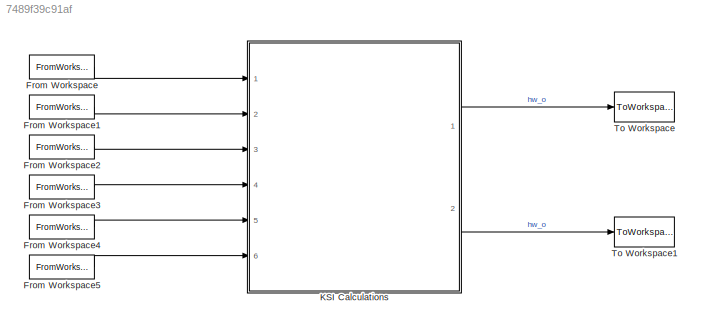
MODEL slx_7489f39c91af
KIND model
CONFIG AbsTol = auto
CONFIG EnableMultiTasking = off
CONFIG FixedStep = auto
CONFIG InitFcn = block_verScript;
CONFIG MaxStep = auto
CONFIG MinStep = auto
CONFIG RelTol = 1e-3
CONFIG SampleTimeConstraint = Unconstrained
CONFIG Solver = VariableStepAuto
CONFIG SolverName = VariableStepAuto
CONFIG StartTime = 0.0
CONFIG StopFcn = ksiOut = out.ksi_verOut.signals.values(:, 1:FFT_size);\nhwOut = out.hw_verOut.signals.values(:, 1:FFT_size);\n\nfigure();\nsubplot(211);\nstem(1:FFT_size, ksiOut(1,:)); xlabel('Samples'); title('ksi Output - Frame 1');\nsubplot(212);\nstem(1:FFT_size, hwOut(1,:)); xlabel('Samples'); title('hw Output - Frame 1');
CONFIG StopTime = (nSamp-1)*Ts
BLOCK [FromWorkspace] From Workspace
  SampleTime = Ts
  VariableName = postSNRSim
  ZeroCross = on
BLOCK [FromWorkspace] From Workspace1
  SampleTime = Ts
  VariableName = noiseVarianceSim
  ZeroCross = on
BLOCK [FromWorkspace] From Workspace2
  SampleTime = Ts
  VariableName = ksiInitSim
  ZeroCross = on
BLOCK [FromWorkspace] From Workspace3
  SampleTime = Ts
  VariableName = Xk_prevSim
  ZeroCross = on
BLOCK [FromWorkspace] From Workspace4
  SampleTime = Ts
  VariableName = aaSim
  ZeroCross = on
BLOCK [FromWorkspace] From Workspace5
  SampleTime = Ts
  VariableName = betaSim
  ZeroCross = on
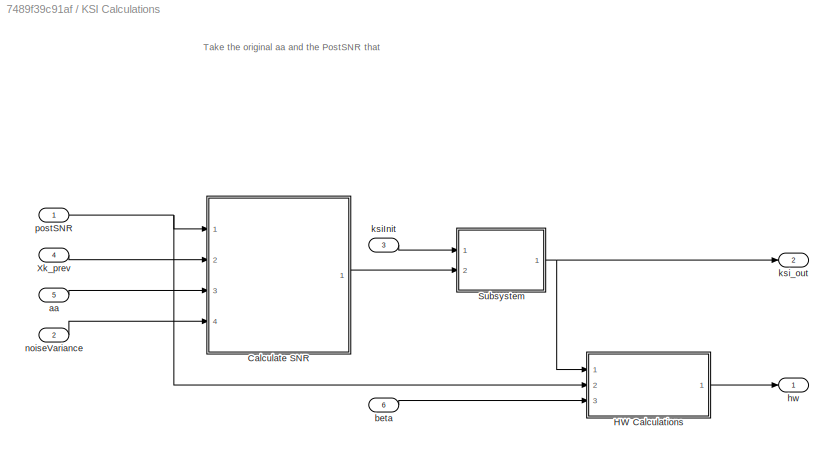
BLOCK [SubSystem] KSI Calculations
  Ports = [6, 2]
  RequestExecContextInheritance = off
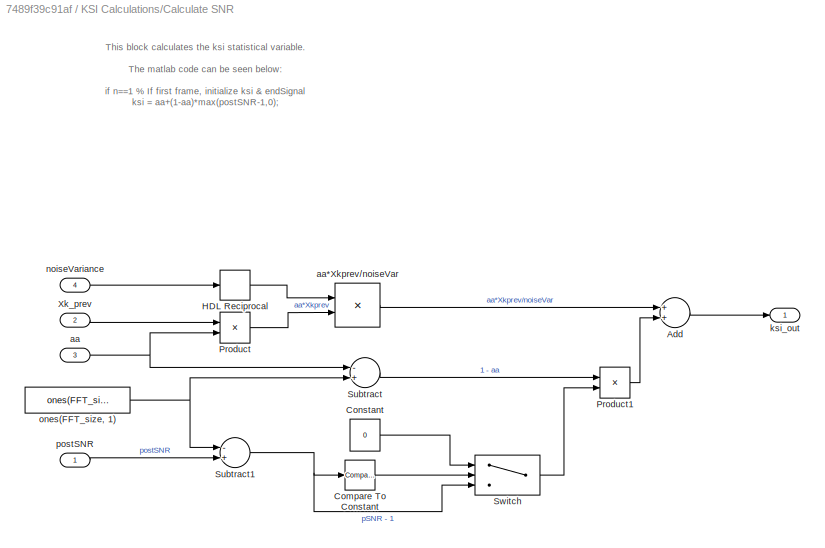
BLOCK [SubSystem] KSI Calculations/Calculate SNR
  Ports = [4, 1]
  RequestExecContextInheritance = off
BLOCK [Sum] KSI Calculations/Calculate SNR/Add
  InputSameDT = off
  OutDataTypeStr = Inherit: Inherit via internal rule
  Ports = [2, 1]
  SaturateOnIntegerOverflow = off
BLOCK [Reference] KSI Calculations/Calculate SNR/Compare To Constant  REF=simulink/Logic and Bit
Operations/Compare
To Constant
  Ports = [1, 1]
  SourceBlock = simulink/Logic and Bit\nOperations/Compare\nTo Constant
  SourceProductBaseCode = SL
  SourceProductName = Simulink
  SourceType = Compare To Constant
BLOCK [Constant] KSI Calculations/Calculate SNR/Constant
  SampleTime = -1
  Value = 0
BLOCK [Reciprocal] KSI Calculations/Calculate SNR/HDL Reciprocal
BLOCK [Product] KSI Calculations/Calculate SNR/Product
  InputSameDT = off
  OutDataTypeStr = Inherit: Inherit via internal rule
  Ports = [2, 1]
  RndMeth = Floor
  SaturateOnIntegerOverflow = off
BLOCK [Product] KSI Calculations/Calculate SNR/Product1
  InputSameDT = off
  OutDataTypeStr = Inherit: Inherit via internal rule
  Ports = [2, 1]
  RndMeth = Floor
  SaturateOnIntegerOverflow = off
BLOCK [Sum] KSI Calculations/Calculate SNR/Subtract
  InputSameDT = off
  Inputs = -+
  OutDataTypeStr = Inherit: Inherit via internal rule
  Ports = [2, 1]
  SaturateOnIntegerOverflow = off
BLOCK [Sum] KSI Calculations/Calculate SNR/Subtract1
  InputSameDT = off
  Inputs = -+
  OutDataTypeStr = Inherit: Inherit via internal rule
  Ports = [2, 1]
  SaturateOnIntegerOverflow = off
BLOCK [Switch] KSI Calculations/Calculate SNR/Switch
  InputSameDT = off
  SaturateOnIntegerOverflow = off
  Threshold = 1
BLOCK [Inport] KSI Calculations/Calculate SNR/Xk_prev
  IconDisplay = Port number
  Port = 2
BLOCK [Inport] KSI Calculations/Calculate SNR/aa
  IconDisplay = Port number
  Port = 3
BLOCK [Product] KSI Calculations/Calculate SNR/aa*Xkprev//noiseVar
  InputSameDT = off
  Inputs = **
  OutDataTypeStr = Inherit: Inherit via internal rule
  Ports = [2, 1]
BLOCK [Outport] KSI Calculations/Calculate SNR/ksi_out
  IconDisplay = Port number
BLOCK [Inport] KSI Calculations/Calculate SNR/noiseVariance
  IconDisplay = Port number
  Port = 4
BLOCK [Constant] KSI Calculations/Calculate SNR/ones(FFT_size, 1)
  SampleTime = -1
  Value = ones(FFT_size, 1)
BLOCK [Inport] KSI Calculations/Calculate SNR/postSNR
  IconDisplay = Port number
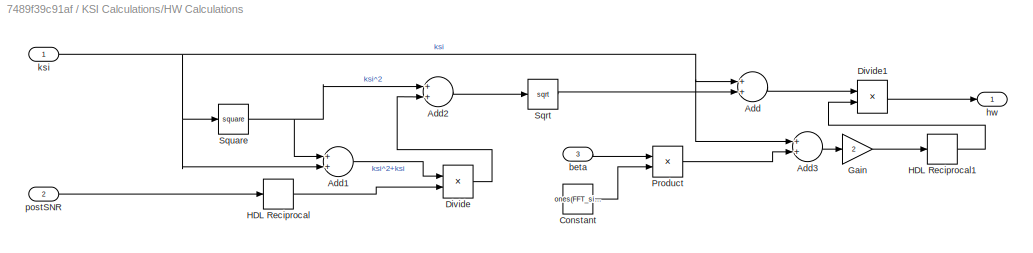
BLOCK [SubSystem] KSI Calculations/HW Calculations
  Ports = [3, 1]
  RequestExecContextInheritance = off
BLOCK [Sum] KSI Calculations/HW Calculations/Add
  InputSameDT = off
  OutDataTypeStr = Inherit: Inherit via internal rule
  Ports = [2, 1]
  SaturateOnIntegerOverflow = off
BLOCK [Sum] KSI Calculations/HW Calculations/Add1
  InputSameDT = off
  OutDataTypeStr = Inherit: Inherit via internal rule
  Ports = [2, 1]
  SaturateOnIntegerOverflow = off
BLOCK [Sum] KSI Calculations/HW Calculations/Add2
  InputSameDT = off
  OutDataTypeStr = Inherit: Inherit via internal rule
  Ports = [2, 1]
  SaturateOnIntegerOverflow = off
BLOCK [Sum] KSI Calculations/HW Calculations/Add3
  InputSameDT = off
  OutDataTypeStr = Inherit: Inherit via internal rule
  Ports = [2, 1]
  SaturateOnIntegerOverflow = off
BLOCK [Constant] KSI Calculations/HW Calculations/Constant
  SampleTime = Ts
  Value = ones(FFT_size, 1)
BLOCK [Product] KSI Calculations/HW Calculations/Divide
  InputSameDT = off
  Inputs = **
  OutDataTypeStr = Inherit: Inherit via internal rule
  Ports = [2, 1]
BLOCK [Product] KSI Calculations/HW Calculations/Divide1
  InputSameDT = off
  Inputs = **
  OutDataTypeStr = Inherit: Inherit via internal rule
  Ports = [2, 1]
BLOCK [Gain] KSI Calculations/HW Calculations/Gain
  Gain = 2
  OutDataTypeStr = Inherit: Inherit via internal rule
  ParamDataTypeStr = Inherit: Inherit via internal rule
  SaturateOnIntegerOverflow = off
BLOCK [Reciprocal] KSI Calculations/HW Calculations/HDL Reciprocal
BLOCK [Reciprocal] KSI Calculations/HW Calculations/HDL Reciprocal1
BLOCK [Product] KSI Calculations/HW Calculations/Product
  InputSameDT = off
  OutDataTypeStr = Inherit: Inherit via internal rule
  Ports = [2, 1]
  RndMeth = Floor
  SaturateOnIntegerOverflow = off
BLOCK [Sqrt] KSI Calculations/HW Calculations/Sqrt
BLOCK [Math] KSI Calculations/HW Calculations/Square
  Operator = square
  Ports = [1, 1]
  RndMeth = Zero
BLOCK [Inport] KSI Calculations/HW Calculations/beta
  IconDisplay = Port number
  Port = 3
BLOCK [Outport] KSI Calculations/HW Calculations/hw
  IconDisplay = Port number
BLOCK [Inport] KSI Calculations/HW Calculations/ksi
  IconDisplay = Port number
BLOCK [Inport] KSI Calculations/HW Calculations/postSNR
  IconDisplay = Port number
  Port = 2
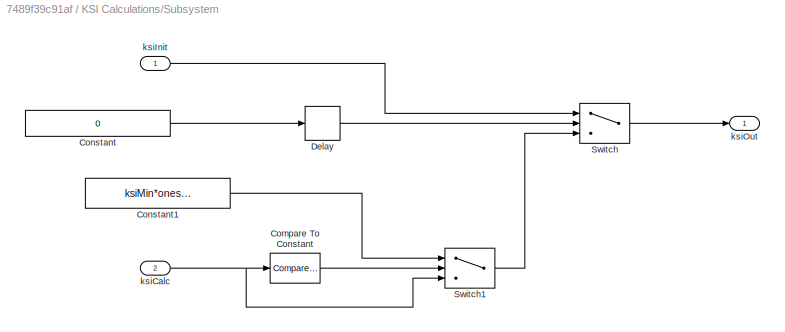
BLOCK [SubSystem] KSI Calculations/Subsystem
  Ports = [2, 1]
  RequestExecContextInheritance = off
BLOCK [Reference] KSI Calculations/Subsystem/Compare To Constant  REF=simulink/Logic and Bit
Operations/Compare
To Constant
  Ports = [1, 1]
  SourceBlock = simulink/Logic and Bit\nOperations/Compare\nTo Constant
  SourceProductBaseCode = SL
  SourceProductName = Simulink
  SourceType = Compare To Constant
BLOCK [Constant] KSI Calculations/Subsystem/Constant
  SampleTime = -1
  Value = 0
BLOCK [Constant] KSI Calculations/Subsystem/Constant1
  SampleTime = -1
  Value = ksiMin*ones(FFT_size, 1)
BLOCK [Delay] KSI Calculations/Subsystem/Delay
  DelayLength = 1
  InitialCondition = 1
  InputPortMap = u0
  Ports = [1, 1]
BLOCK [Switch] KSI Calculations/Subsystem/Switch
  Criteria = u2 > Threshold
  InputSameDT = off
  SaturateOnIntegerOverflow = off
BLOCK [Switch] KSI Calculations/Subsystem/Switch1
  Criteria = u2 > Threshold
  InputSameDT = off
  SaturateOnIntegerOverflow = off
BLOCK [Inport] KSI Calculations/Subsystem/ksiCalc
  IconDisplay = Port number
  Port = 2
BLOCK [Inport] KSI Calculations/Subsystem/ksiInit
  IconDisplay = Port number
BLOCK [Outport] KSI Calculations/Subsystem/ksiOut
  IconDisplay = Port number
BLOCK [Inport] KSI Calculations/Xk_prev
  IconDisplay = Port number
  Port = 4
BLOCK [Inport] KSI Calculations/aa
  IconDisplay = Port number
  Port = 5
BLOCK [Inport] KSI Calculations/beta
  IconDisplay = Port number
  Port = 6
BLOCK [Outport] KSI Calculations/hw
  IconDisplay = Port number
BLOCK [Inport] KSI Calculations/ksiInit
  IconDisplay = Port number
  Port = 3
BLOCK [Outport] KSI Calculations/ksi_out
  IconDisplay = Port number
  Port = 2
BLOCK [Inport] KSI Calculations/noiseVariance
  IconDisplay = Port number
  Port = 2
BLOCK [Inport] KSI Calculations/postSNR
  IconDisplay = Port number
BLOCK [ToWorkspace] To Workspace
  FixptAsFi = on
  MaxDataPoints = inf
  Ports = [1]
  SampleTime = -1
  SaveFormat = Structure With Time
  VariableName = hw_verOut
BLOCK [ToWorkspace] To Workspace1
  FixptAsFi = on
  MaxDataPoints = inf
  Ports = [1]
  SampleTime = -1
  SaveFormat = Structure With Time
  VariableName = ksi_verOut
ANNOTATION KSI Calculations: Take the original aa and the PostSNR that
ANNOTATION KSI Calculations/Calculate SNR: This block calculates the ksi statistical variable. The matlab code can be seen below: if n==1 % If first frame, initialize ksi & endSignal ksi = aa+(1-aa)*max(postSNR-1,0); ensig = frameMag; else ksi = aa*Xk_prev./noiseVariance + (1-aa)*max(postSNR-1,0); % decision-direct estimate of a priori SNR ksi = max(ksi_min,ksi); % limit ksi to -25 dB end
LINE From Workspace1:1 -> KSI Calculations:2
LINE From Workspace2:1 -> KSI Calculations:3
LINE From Workspace3:1 -> KSI Calculations:4
LINE From Workspace4:1 -> KSI Calculations:5
LINE From Workspace5:1 -> KSI Calculations:6
LINE From Workspace:1 -> KSI Calculations:1
LINE KSI Calculations/Calculate SNR/Add:1 -> KSI Calculations/Calculate SNR/ksi_out:1
LINE KSI Calculations/Calculate SNR/Compare To Constant:1 -> KSI Calculations/Calculate SNR/Switch:2
LINE KSI Calculations/Calculate SNR/Constant:1 -> KSI Calculations/Calculate SNR/Switch:1
LINE KSI Calculations/Calculate SNR/HDL Reciprocal:1 -> KSI Calculations/Calculate SNR/aa*Xkprev//noiseVar:1
LINE KSI Calculations/Calculate SNR/Product1:1 -> KSI Calculations/Calculate SNR/Add:2
LINE KSI Calculations/Calculate SNR/Product:1 -> KSI Calculations/Calculate SNR/aa*Xkprev//noiseVar:2
NET KSI Calculations/Calculate SNR/Subtract1:1 -> KSI Calculations/Calculate SNR/Compare To Constant:1, KSI Calculations/Calculate SNR/Switch:3
LINE KSI Calculations/Calculate SNR/Subtract:1 -> KSI Calculations/Calculate SNR/Product1:1
LINE KSI Calculations/Calculate SNR/Switch:1 -> KSI Calculations/Calculate SNR/Product1:2
LINE KSI Calculations/Calculate SNR/Xk_prev:1 -> KSI Calculations/Calculate SNR/Product:1
LINE KSI Calculations/Calculate SNR/aa*Xkprev//noiseVar:1 -> KSI Calculations/Calculate SNR/Add:1
NET KSI Calculations/Calculate SNR/aa:1 -> KSI Calculations/Calculate SNR/Product:2, KSI Calculations/Calculate SNR/Subtract:1
LINE KSI Calculations/Calculate SNR/noiseVariance:1 -> KSI Calculations/Calculate SNR/HDL Reciprocal:1
NET KSI Calculations/Calculate SNR/ones(FFT_size, 1):1 -> KSI Calculations/Calculate SNR/Subtract1:1, KSI Calculations/Calculate SNR/Subtract:2
LINE KSI Calculations/Calculate SNR/postSNR:1 -> KSI Calculations/Calculate SNR/Subtract1:2
LINE KSI Calculations/Calculate SNR:1 -> KSI Calculations/Subsystem:2
LINE KSI Calculations/HW Calculations/Add1:1 -> KSI Calculations/HW Calculations/Divide:1
LINE KSI Calculations/HW Calculations/Add2:1 -> KSI Calculations/HW Calculations/Sqrt:1
LINE KSI Calculations/HW Calculations/Add3:1 -> KSI Calculations/HW Calculations/Gain:1
LINE KSI Calculations/HW Calculations/Add:1 -> KSI Calculations/HW Calculations/Divide1:1
LINE KSI Calculations/HW Calculations/Constant:1 -> KSI Calculations/HW Calculations/Product:2
LINE KSI Calculations/HW Calculations/Divide1:1 -> KSI Calculations/HW Calculations/hw:1
LINE KSI Calculations/HW Calculations/Divide:1 -> KSI Calculations/HW Calculations/Add2:2
LINE KSI Calculations/HW Calculations/Gain:1 -> KSI Calculations/HW Calculations/HDL Reciprocal1:1
LINE KSI Calculations/HW Calculations/HDL Reciprocal1:1 -> KSI Calculations/HW Calculations/Divide1:2
LINE KSI Calculations/HW Calculations/HDL Reciprocal:1 -> KSI Calculations/HW Calculations/Divide:2
LINE KSI Calculations/HW Calculations/Product:1 -> KSI Calculations/HW Calculations/Add3:2
LINE KSI Calculations/HW Calculations/Sqrt:1 -> KSI Calculations/HW Calculations/Add:2
NET KSI Calculations/HW Calculations/Square:1 -> KSI Calculations/HW Calculations/Add1:1, KSI Calculations/HW Calculations/Add2:1
LINE KSI Calculations/HW Calculations/beta:1 -> KSI Calculations/HW Calculations/Product:1
NET KSI Calculations/HW Calculations/ksi:1 -> KSI Calculations/HW Calculations/Add1:2, KSI Calculations/HW Calculations/Add3:1, KSI Calculations/HW Calculations/Add:1, KSI Calculations/HW Calculations/Square:1
LINE KSI Calculations/HW Calculations/postSNR:1 -> KSI Calculations/HW Calculations/HDL Reciprocal:1
LINE KSI Calculations/HW Calculations:1 -> KSI Calculations/hw:1
LINE KSI Calculations/Subsystem/Compare To Constant:1 -> KSI Calculations/Subsystem/Switch1:2
LINE KSI Calculations/Subsystem/Constant1:1 -> KSI Calculations/Subsystem/Switch1:1
LINE KSI Calculations/Subsystem/Constant:1 -> KSI Calculations/Subsystem/Delay:1
LINE KSI Calculations/Subsystem/Delay:1 -> KSI Calculations/Subsystem/Switch:2
LINE KSI Calculations/Subsystem/Switch1:1 -> KSI Calculations/Subsystem/Switch:3
LINE KSI Calculations/Subsystem/Switch:1 -> KSI Calculations/Subsystem/ksiOut:1
NET KSI Calculations/Subsystem/ksiCalc:1 -> KSI Calculations/Subsystem/Compare To Constant:1, KSI Calculations/Subsystem/Switch1:3
LINE KSI Calculations/Subsystem/ksiInit:1 -> KSI Calculations/Subsystem/Switch:1
NET KSI Calculations/Subsystem:1 -> KSI Calculations/HW Calculations:1, KSI Calculations/ksi_out:1
LINE KSI Calculations/Xk_prev:1 -> KSI Calculations/Calculate SNR:2
LINE KSI Calculations/aa:1 -> KSI Calculations/Calculate SNR:3
LINE KSI Calculations/beta:1 -> KSI Calculations/HW Calculations:3
LINE KSI Calculations/ksiInit:1 -> KSI Calculations/Subsystem:1
LINE KSI Calculations/noiseVariance:1 -> KSI Calculations/Calculate SNR:4
NET KSI Calculations/postSNR:1 -> KSI Calculations/Calculate SNR:1, KSI Calculations/HW Calculations:2
LINE KSI Calculations:1 -> To Workspace:1
LINE KSI Calculations:2 -> To Workspace1:1
note: NET lines group one-source signal fan-out (src -> all destinations, sorted); 1:1 wires keep LINE
